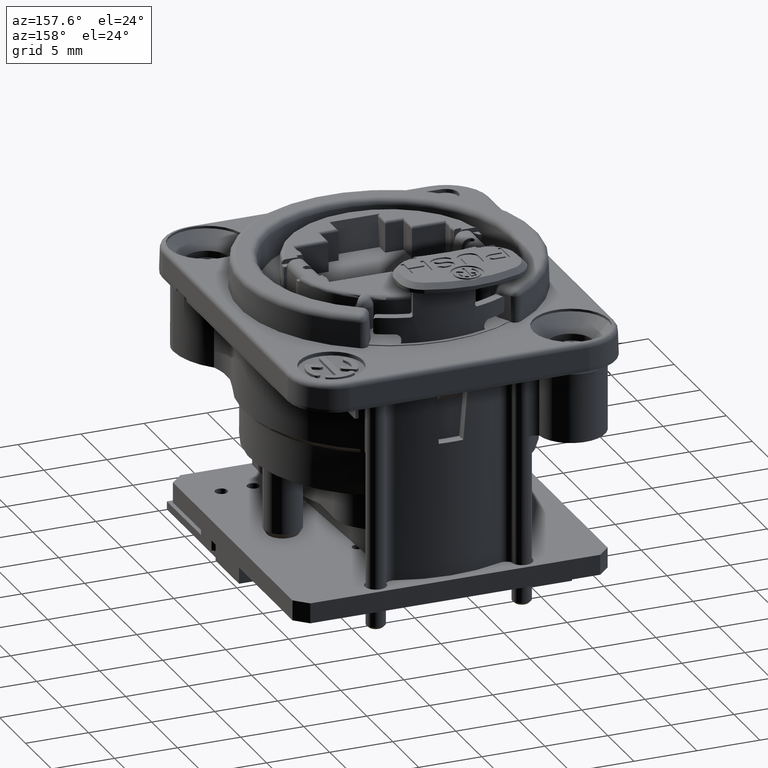
[diagram: clean part render]
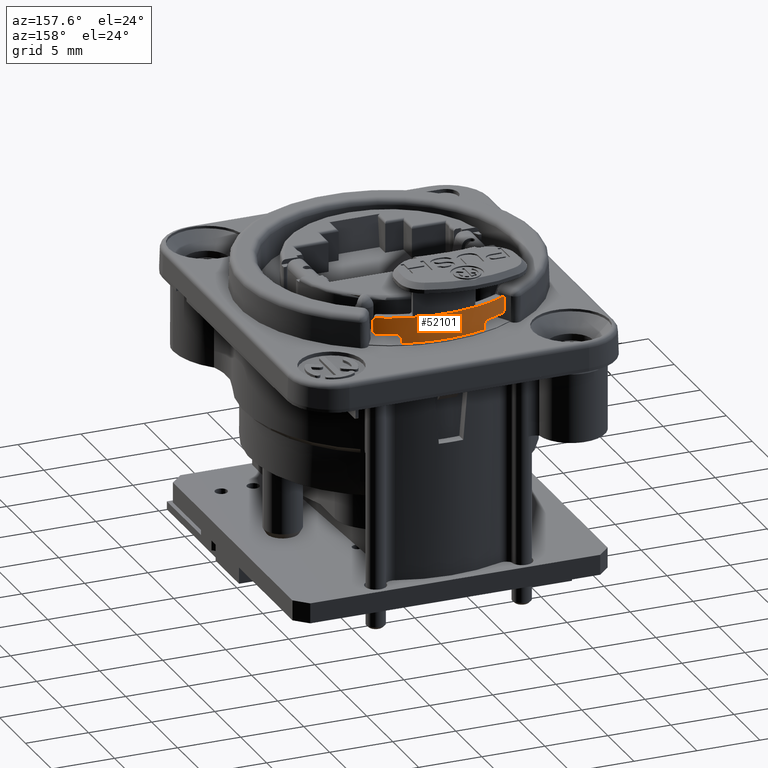
[diagram: same view with one face highlighted and labeled with its STEP entity id]
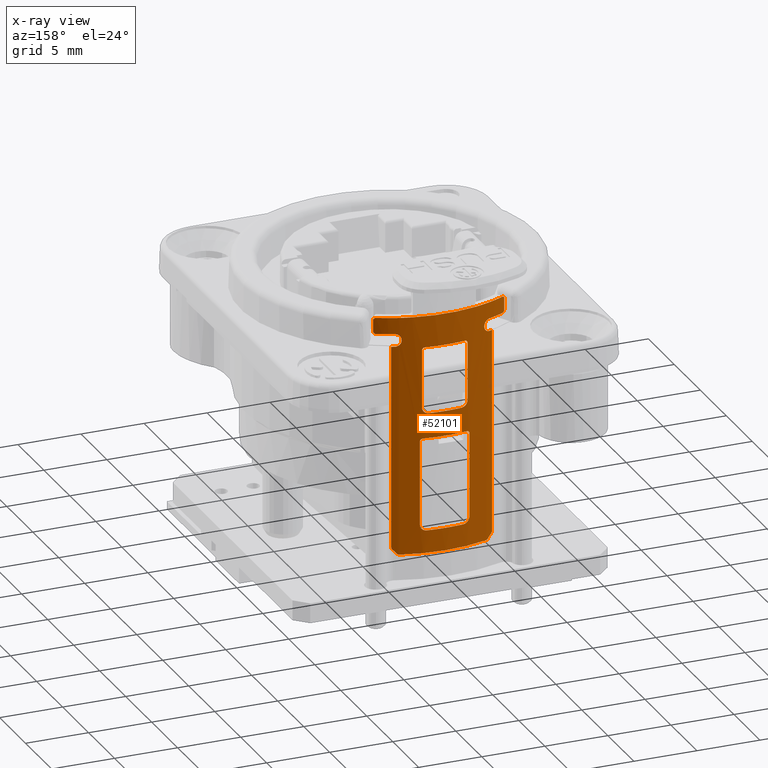
[diagram: x-ray of the same camera — body ghosted, the highlighted face saturated]
A machine part, auxiliary view. The second image highlights one B-rep face of the part: STEP entity #52101.
The next image is the same camera in x-ray: the body ghosted, the highlighted face saturated — about 0% of this face is hidden behind the body in this view.
In plain terms, the highlighted cylindrical surface (partial cylindrical patch) has radius 10.9 mm, axis along (0, 0, 1).
Its self-contained STEP definition (entity closure, byte-faithful):
#44777=DIRECTION('',(9.599317159302E-13,-8.346826896123E-13,1.E0));
#44778=VECTOR('',#44777,6.667594820286E0);
#44779=CARTESIAN_POINT('',(1.961633253372E0,1.072203315511E1,
-1.712519482029E1));
#44780=LINE('',#44779,#44778);
#44784=CARTESIAN_POINT('',(1.757109384828E0,1.075744238236E1,-1.025E1));
#44798=CARTESIAN_POINT('',(1.961633253379E0,1.072203315511E1,-1.04576E1));
#44800=CARTESIAN_POINT('',(1.961633253379E0,1.072203315511E1,-1.04576E1));
#44801=CARTESIAN_POINT('',(1.961633253379E0,1.072203315511E1,
-1.043535411662E1));
#44802=CARTESIAN_POINT('',(1.955155878715E0,1.072322264983E1,
-1.039317997435E1));
#44803=CARTESIAN_POINT('',(1.924713419247E0,1.072874372115E1,
-1.033266300941E1));
#44804=CARTESIAN_POINT('',(1.880255283652E0,1.073664797698E1,
-1.028751079353E1));
#44805=CARTESIAN_POINT('',(1.820630401653E0,1.074693552532E1,
-1.025658127235E1));
#44806=CARTESIAN_POINT('',(1.779050358237E0,1.075385856671E1,-1.025E1));
#44807=CARTESIAN_POINT('',(1.757109384828E0,1.075744238236E1,-1.025E1));
#44814=CARTESIAN_POINT('',(0.E0,0.E0,-1.025E1));
#44815=DIRECTION('',(0.E0,0.E0,1.E0));
#44816=DIRECTION('',(1.612026958558E-1,9.869213194824E-1,0.E0));
#44817=AXIS2_PLACEMENT_3D('',#44814,#44815,#44816);
#44819=CARTESIAN_POINT('',(-1.757109384828E0,1.075744238236E1,-1.025E1));
#44824=CARTESIAN_POINT('',(-1.757109384828E0,1.075744238236E1,-1.025E1));
#44825=CARTESIAN_POINT('',(-1.779050358237E0,1.075385856671E1,-1.025E1));
#44826=CARTESIAN_POINT('',(-1.820630401653E0,1.074693552532E1,
-1.025658127235E1));
#44827=CARTESIAN_POINT('',(-1.880255283652E0,1.073664797698E1,
-1.028751079353E1));
#44828=CARTESIAN_POINT('',(-1.924713419247E0,1.072874372115E1,
-1.033266300941E1));
#44829=CARTESIAN_POINT('',(-1.955155878715E0,1.072322264983E1,
-1.039317997435E1));
#44830=CARTESIAN_POINT('',(-1.961633253379E0,1.072203315511E1,
-1.043535411662E1));
#44831=CARTESIAN_POINT('',(-1.961633253379E0,1.072203315511E1,-1.04576E1));
#44833=CARTESIAN_POINT('',(-1.961633253379E0,1.072203315511E1,-1.04576E1));
#44847=DIRECTION('',(0.E0,0.E0,1.E0));
#44848=VECTOR('',#44847,8.848E-1);
#44849=CARTESIAN_POINT('',(5.201030486830E0,9.579106528015E0,-1.5424E0));
#44850=LINE('',#44849,#44848);
#44851=CARTESIAN_POINT('',(0.E0,0.E0,-4.5E-1));
#44852=DIRECTION('',(0.E0,0.E0,1.E0));
#44853=DIRECTION('',(2.451565970441E-1,9.694834928588E-1,0.E0));
#44854=AXIS2_PLACEMENT_3D('',#44851,#44852,#44853);
#44856=CARTESIAN_POINT('',(0.E0,0.E0,-4.5E-1));
#44857=DIRECTION('',(0.E0,0.E0,1.E0));
#44858=DIRECTION('',(2.266469292554E-1,9.739769861034E-1,0.E0));
#44859=AXIS2_PLACEMENT_3D('',#44856,#44857,#44858);
#44861=CARTESIAN_POINT('',(0.E0,0.E0,-4.5E-1));
#44862=DIRECTION('',(0.E0,0.E0,1.E0));
#44863=DIRECTION('',(-2.266513074369E-1,9.739759672791E-1,0.E0));
#44864=AXIS2_PLACEMENT_3D('',#44861,#44862,#44863);
#44866=DIRECTION('',(0.E0,0.E0,-1.E0));
#44867=VECTOR('',#44866,1.611400926445E1);
#44868=CARTESIAN_POINT('',(-4.000172927388E0,1.013945839535E1,-2.75E0));
#44869=LINE('',#44868,#44867);
#44892=CARTESIAN_POINT('',(1.449029124397E0,1.080323830249E1,
-1.764463572615E1));
#44894=CARTESIAN_POINT('',(1.449029124397E0,1.080323830249E1,
-1.764463572615E1));
#44895=CARTESIAN_POINT('',(1.494893242116E0,1.079708659705E1,
-1.764463572615E1));
#44896=CARTESIAN_POINT('',(1.583081768365E0,1.078470000580E1,
-1.763271748011E1));
#44897=CARTESIAN_POINT('',(1.708777571555E0,1.076544488297E1,
-1.758032084518E1));
#44898=CARTESIAN_POINT('',(1.815917191049E0,1.074781593762E1,
-1.749687263911E1));
#44899=CARTESIAN_POINT('',(1.898222830045E0,1.073351195766E1,
-1.738823895333E1));
#44900=CARTESIAN_POINT('',(1.949874298576E0,1.072419436937E1,
-1.726090910517E1));
#44901=CARTESIAN_POINT('',(1.961633253201E0,1.072203315515E1,
-1.717161563702E1));
#44902=CARTESIAN_POINT('',(1.961633253372E0,1.072203315511E1,
-1.712519482029E1));
#44904=CARTESIAN_POINT('',(1.961633253372E0,1.072203315511E1,
-1.712519482029E1));
#45023=DIRECTION('',(0.E0,0.E0,1.E0));
#45024=VECTOR('',#45023,6.667594842142E0);
#45025=CARTESIAN_POINT('',(-1.961633253379E0,1.072203315511E1,
-1.712519484214E1));
#45026=LINE('',#45025,#45024);
#45031=CARTESIAN_POINT('',(-1.961633253379E0,1.072203315511E1,
-1.712519484214E1));
#45038=CARTESIAN_POINT('',(-1.961633253379E0,1.072203315511E1,
-1.712519484214E1));
#45039=CARTESIAN_POINT('',(-1.961633253379E0,1.072203315511E1,
-1.717161565680E1));
#45040=CARTESIAN_POINT('',(-1.949874298836E0,1.072419436932E1,
-1.726090912291E1));
#45041=CARTESIAN_POINT('',(-1.898222833574E0,1.073351195703E1,
-1.738823896300E1));
#45042=CARTESIAN_POINT('',(-1.815917197045E0,1.074781593660E1,
-1.749687264607E1));
#45043=CARTESIAN_POINT('',(-1.708777582652E0,1.076544488116E1,
-1.758032084738E1));
#45044=CARTESIAN_POINT('',(-1.583081786586E0,1.078470000318E1,
-1.763271748128E1));
#45045=CARTESIAN_POINT('',(-1.494893255726E0,1.079708659505E1,
-1.764463572630E1));
#45046=CARTESIAN_POINT('',(-1.449029139813E0,1.080323830033E1,
-1.764463572630E1));
#45072=CARTESIAN_POINT('',(0.E0,0.E0,-1.764463572632E1));
#45073=DIRECTION('',(0.E0,0.E0,1.E0));
#45074=DIRECTION('',(8.560938803546E-2,9.963287774024E-1,0.E0));
#45075=AXIS2_PLACEMENT_3D('',#45072,#45073,#45074);
#45077=CARTESIAN_POINT('',(0.E0,0.E0,-1.764463572631E1));
#45078=DIRECTION('',(0.E0,0.E0,1.E0));
#45079=DIRECTION('',(1.329384498522E-1,9.911242952077E-1,0.E0));
#45080=AXIS2_PLACEMENT_3D('',#45077,#45078,#45079);
#45082=CARTESIAN_POINT('',(0.E0,0.E0,-1.764463572631E1));
#45083=DIRECTION('',(0.E0,0.E0,1.E0));
#45084=DIRECTION('',(-8.560928481689E-2,9.963287862714E-1,0.E0));
#45085=AXIS2_PLACEMENT_3D('',#45082,#45083,#45084);
#45324=CARTESIAN_POINT('',(0.E0,0.E0,-8.26E0));
#45325=DIRECTION('',(0.E0,0.E0,1.E0));
#45326=DIRECTION('',(-7.136687902735E-2,9.974501333791E-1,0.E0));
#45327=AXIS2_PLACEMENT_3D('',#45324,#45325,#45326);
#45329=CARTESIAN_POINT('',(0.E0,0.E0,-8.26E0));
#45330=DIRECTION('',(0.E0,0.E0,1.E0));
#45331=DIRECTION('',(7.136687902734E-2,9.974501333791E-1,0.E0));
#45332=AXIS2_PLACEMENT_3D('',#45329,#45330,#45331);
#45334=CARTESIAN_POINT('',(0.E0,0.E0,-8.26E0));
#45335=DIRECTION('',(0.E0,0.E0,1.E0));
#45336=DIRECTION('',(1.187629808289E-1,9.929226326279E-1,0.E0));
#45337=AXIS2_PLACEMENT_3D('',#45334,#45335,#45336);
#45366=CARTESIAN_POINT('',(-1.808249726453E0,1.074896427228E1,
-7.740524821560E0));
#45373=CARTESIAN_POINT('',(-1.808249726453E0,1.074896427228E1,
-7.740524821560E0));
#45374=CARTESIAN_POINT('',(-1.808249726453E0,1.074896427228E1,
-7.786949492682E0));
#45375=CARTESIAN_POINT('',(-1.796460214448E0,1.075095738807E1,
-7.876249995897E0));
#45376=CARTESIAN_POINT('',(-1.744677620356E0,1.075953675972E1,
-8.003588232366E0));
#45377=CARTESIAN_POINT('',(-1.662171053128E0,1.077266364995E1,
-8.112228557210E0));
#45378=CARTESIAN_POINT('',(-1.554784371958E0,1.078876274007E1,
-8.195681373269E0));
#45379=CARTESIAN_POINT('',(-1.428819592826E0,1.080621400630E1,
-8.248080983924E0));
#45380=CARTESIAN_POINT('',(-1.340456892459E0,1.081735693575E1,
-8.260000000005E0));
#45381=CARTESIAN_POINT('',(-1.294506733971E0,1.082285297072E1,
-8.260000000005E0));
#45411=DIRECTION('',(0.E0,0.E0,1.E0));
#45412=VECTOR('',#45411,4.582924821560E0);
#45413=CARTESIAN_POINT('',(-1.808249726453E0,1.074896427228E1,
-7.740524821560E0));
#45414=LINE('',#45413,#45412);
#45585=CARTESIAN_POINT('',(1.294516154210E0,1.082285184372E1,
-8.260000005986E0));
#45587=CARTESIAN_POINT('',(1.294516154210E0,1.082285184372E1,
-8.260000005986E0));
#45588=CARTESIAN_POINT('',(1.340467154282E0,1.081735566752E1,
-8.260000005986E0));
#45589=CARTESIAN_POINT('',(1.428831471148E0,1.080621244542E1,
-8.248080782321E0));
#45590=CARTESIAN_POINT('',(1.554798493449E0,1.078876071313E1,
-8.195680238897E0));
#45591=CARTESIAN_POINT('',(1.662187183565E0,1.077266116642E1,
-8.112225850001E0));
#45592=CARTESIAN_POINT('',(1.744695198806E0,1.075953391189E1,
-8.003583601773E0));
#45593=CARTESIAN_POINT('',(1.796478773267E0,1.075095428758E1,
-7.876242953037E0));
#45594=CARTESIAN_POINT('',(1.808268487067E0,1.074896111625E1,
-7.786940814801E0));
#45595=CARTESIAN_POINT('',(1.808268487067E0,1.074896111625E1,
-7.740515294551E0));
#45597=CARTESIAN_POINT('',(1.808268487067E0,1.074896111625E1,
-7.740515294551E0));
#45604=DIRECTION('',(-2.945413380774E-11,4.954743437011E-12,1.E0));
#45605=VECTOR('',#45604,4.582915294551E0);
#45606=CARTESIAN_POINT('',(1.808268487067E0,1.074896111625E1,
-7.740515294551E0));
#45607=LINE('',#45606,#45605);
#45645=CARTESIAN_POINT('',(1.603259665224E0,1.078144510007E1,-2.95E0));
#45659=CARTESIAN_POINT('',(1.808268486932E0,1.074896111627E1,-3.1576E0));
#45661=CARTESIAN_POINT('',(1.808268486932E0,1.074896111627E1,-3.1576E0));
#45662=CARTESIAN_POINT('',(1.808268486932E0,1.074896111627E1,
-3.135354116623E0));
#45663=CARTESIAN_POINT('',(1.801774781223E0,1.075005796011E1,
-3.093179974350E0));
#45664=CARTESIAN_POINT('',(1.771256559300E0,1.075514359650E1,
-3.032663009412E0));
#45665=CARTESIAN_POINT('',(1.726690047484E0,1.076241195983E1,
-2.987510793528E0));
#45666=CARTESIAN_POINT('',(1.666924291410E0,1.077184671501E1,
-2.956581272349E0));
#45667=CARTESIAN_POINT('',(1.625249594787E0,1.077817507766E1,-2.95E0));
#45668=CARTESIAN_POINT('',(1.603259665224E0,1.078144510007E1,-2.95E0));
#45675=CARTESIAN_POINT('',(0.E0,0.E0,-2.95E0));
#45676=DIRECTION('',(0.E0,0.E0,1.E0));
#45677=DIRECTION('',(1.470880426811E-1,9.891234036763E-1,0.E0));
#45678=AXIS2_PLACEMENT_3D('',#45675,#45676,#45677);
#45680=CARTESIAN_POINT('',(-1.603240848050E0,1.078144789827E1,-2.95E0));
#45685=CARTESIAN_POINT('',(-1.603240848050E0,1.078144789827E1,-2.95E0));
#45686=CARTESIAN_POINT('',(-1.625230783320E0,1.077817791424E1,-2.95E0));
#45687=CARTESIAN_POINT('',(-1.666905490989E0,1.077184962432E1,
-2.956581272349E0));
#45688=CARTESIAN_POINT('',(-1.726671263529E0,1.076241497346E1,
-2.987510793528E0));
#45689=CARTESIAN_POINT('',(-1.771237788030E0,1.075514668791E1,
-3.032663009412E0));
#45690=CARTESIAN_POINT('',(-1.801756018830E0,1.075006110478E1,
-3.093179974350E0));
#45691=CARTESIAN_POINT('',(-1.808249726453E0,1.074896427228E1,
-3.135354116623E0));
#45692=CARTESIAN_POINT('',(-1.808249726453E0,1.074896427228E1,-3.1576E0));
#45694=CARTESIAN_POINT('',(-1.808249726453E0,1.074896427228E1,-3.1576E0));
#45717=CARTESIAN_POINT('',(0.E0,0.E0,-2.75E0));
#45718=DIRECTION('',(0.E0,0.E0,-1.E0));
#45719=DIRECTION('',(-3.669883419622E-1,9.302255408576E-1,0.E0));
#45720=AXIS2_PLACEMENT_3D('',#45717,#45718,#45719);
#45722=CARTESIAN_POINT('',(0.E0,0.E0,-2.75E0));
#45723=DIRECTION('',(0.E0,0.E0,-1.E0));
#45724=DIRECTION('',(3.441377443113E-1,9.389191727408E-1,0.E0));
#45725=AXIS2_PLACEMENT_3D('',#45722,#45723,#45724);
#45759=CARTESIAN_POINT('',(-3.751101412993E0,1.023421898288E1,-2.75E0));
#45760=CARTESIAN_POINT('',(-3.706293553371E0,1.025064220245E1,-2.75E0));
#45761=CARTESIAN_POINT('',(-3.616542525587E0,1.028284999959E1,
-2.736196122099E0));
#45762=CARTESIAN_POINT('',(-3.493003251731E0,1.032539846351E1,
-2.676726858455E0));
#45763=CARTESIAN_POINT('',(-3.388866338631E0,1.035994872259E1,
-2.581560827750E0));
#45764=CARTESIAN_POINT('',(-3.315232344233E0,1.038365767008E1,
-2.461537666898E0));
#45765=CARTESIAN_POINT('',(-3.275971002619E0,1.039606050945E1,
-2.321334267204E0));
#45766=CARTESIAN_POINT('',(-3.275971002619E0,1.039606050945E1,
-2.178665732796E0));
#45767=CARTESIAN_POINT('',(-3.315232344233E0,1.038365767008E1,
-2.038462333102E0));
#45768=CARTESIAN_POINT('',(-3.388866338631E0,1.035994872259E1,
-1.918439172250E0));
#45769=CARTESIAN_POINT('',(-3.493003251731E0,1.032539846351E1,
-1.823273141545E0));
#45770=CARTESIAN_POINT('',(-3.616542525587E0,1.028284999959E1,
-1.763803877901E0));
#45771=CARTESIAN_POINT('',(-3.706293553371E0,1.025064220245E1,-1.75E0));
#45772=CARTESIAN_POINT('',(-3.751101412993E0,1.023421898288E1,-1.75E0));
#45774=CARTESIAN_POINT('',(0.E0,0.E0,-1.75E0));
#45775=DIRECTION('',(0.E0,0.E0,1.E0));
#45776=DIRECTION('',(-3.441377443113E-1,9.389191727408E-1,0.E0));
#45777=AXIS2_PLACEMENT_3D('',#45774,#45775,#45776);
#45789=CARTESIAN_POINT('',(0.E0,0.E0,-1.75E0));
#45790=DIRECTION('',(0.E0,0.E0,1.E0));
#45791=DIRECTION('',(4.603378714035E-1,8.877437942062E-1,0.E0));
#45792=AXIS2_PLACEMENT_3D('',#45789,#45790,#45791);
#45794=CARTESIAN_POINT('',(-5.017682798298E0,9.676407356848E0,-1.75E0));
#45799=CARTESIAN_POINT('',(-5.017682798298E0,9.676407356848E0,-1.75E0));
#45800=CARTESIAN_POINT('',(-5.037418883231E0,9.666173247202E0,-1.75E0));
#45801=CARTESIAN_POINT('',(-5.074779578914E0,9.646653848372E0,
-1.743418727651E0));
#45802=CARTESIAN_POINT('',(-5.128241954111E0,9.618321276261E0,
-1.712489206472E0));
#45803=CARTESIAN_POINT('',(-5.168032454442E0,9.596973696436E0,
-1.667336990588E0));
#45804=CARTESIAN_POINT('',(-5.195244955554E0,9.582252781037E0,
-1.606820025650E0));
#45805=CARTESIAN_POINT('',(-5.201030486830E0,9.579106528015E0,
-1.564645883377E0));
#45806=CARTESIAN_POINT('',(-5.201030486830E0,9.579106528015E0,-1.5424E0));
#45822=DIRECTION('',(0.E0,0.E0,1.E0));
#45823=VECTOR('',#45822,8.848E-1);
#45824=CARTESIAN_POINT('',(-5.201030486830E0,9.579106528015E0,-1.5424E0));
#45825=LINE('',#45824,#45823);
#45826=CARTESIAN_POINT('',(-5.017682798298E0,9.676407356848E0,-4.5E-1));
#45840=CARTESIAN_POINT('',(-5.201030486830E0,9.579106528015E0,-6.576E-1));
#45845=CARTESIAN_POINT('',(-5.201030486830E0,9.579106528015E0,-6.576E-1));
#45846=CARTESIAN_POINT('',(-5.201030486830E0,9.579106528015E0,
-6.353541166230E-1));
#45847=CARTESIAN_POINT('',(-5.195244955554E0,9.582252781037E0,
-5.931799743503E-1));
#45848=CARTESIAN_POINT('',(-5.168032454442E0,9.596973696436E0,
-5.326630094118E-1));
#45849=CARTESIAN_POINT('',(-5.128241954111E0,9.618321276261E0,
-4.875107935276E-1));
#45850=CARTESIAN_POINT('',(-5.074779578914E0,9.646653848372E0,
-4.565812723492E-1));
#45851=CARTESIAN_POINT('',(-5.037418883231E0,9.666173247202E0,-4.5E-1));
#45852=CARTESIAN_POINT('',(-5.017682798298E0,9.676407356848E0,-4.5E-1));
#45859=CARTESIAN_POINT('',(0.E0,0.E0,-4.5E-1));
#45860=DIRECTION('',(0.E0,0.E0,1.E0));
#45861=DIRECTION('',(4.603378714035E-1,8.877437942062E-1,0.E0));
#45862=AXIS2_PLACEMENT_3D('',#45859,#45860,#45861);
#45864=CARTESIAN_POINT('',(0.E0,0.E0,-4.5E-1));
#45865=DIRECTION('',(0.E0,0.E0,1.E0));
#45866=DIRECTION('',(-2.451565970441E-1,9.694834928588E-1,0.E0));
#45867=AXIS2_PLACEMENT_3D('',#45864,#45865,#45866);
#45877=CARTESIAN_POINT('',(5.017682798298E0,9.676407356848E0,-4.5E-1));
#45879=CARTESIAN_POINT('',(5.017682798298E0,9.676407356848E0,-4.5E-1));
#45880=CARTESIAN_POINT('',(5.037418883231E0,9.666173247202E0,-4.5E-1));
#45881=CARTESIAN_POINT('',(5.074779578914E0,9.646653848372E0,
-4.565812723492E-1));
#45882=CARTESIAN_POINT('',(5.128241954111E0,9.618321276261E0,
-4.875107935276E-1));
#45883=CARTESIAN_POINT('',(5.168032454442E0,9.596973696436E0,
-5.326630094118E-1));
#45884=CARTESIAN_POINT('',(5.195244955554E0,9.582252781037E0,
-5.931799743503E-1));
#45885=CARTESIAN_POINT('',(5.201030486830E0,9.579106528015E0,
-6.353541166230E-1));
#45886=CARTESIAN_POINT('',(5.201030486830E0,9.579106528015E0,-6.576E-1));
#45909=CARTESIAN_POINT('',(5.017682798298E0,9.676407356848E0,-1.75E0));
#45923=CARTESIAN_POINT('',(5.201030486830E0,9.579106528015E0,-1.5424E0));
#45925=CARTESIAN_POINT('',(5.201030486830E0,9.579106528015E0,-1.5424E0));
#45926=CARTESIAN_POINT('',(5.201030486830E0,9.579106528015E0,
-1.564645883377E0));
#45927=CARTESIAN_POINT('',(5.195244955554E0,9.582252781037E0,
-1.606820025650E0));
#45928=CARTESIAN_POINT('',(5.168032454442E0,9.596973696436E0,
-1.667336990588E0));
#45929=CARTESIAN_POINT('',(5.128241954111E0,9.618321276261E0,
-1.712489206472E0));
#45930=CARTESIAN_POINT('',(5.074779578914E0,9.646653848372E0,
-1.743418727651E0));
#45931=CARTESIAN_POINT('',(5.037418883231E0,9.666173247202E0,-1.75E0));
#45932=CARTESIAN_POINT('',(5.017682798298E0,9.676407356848E0,-1.75E0));
#45937=CARTESIAN_POINT('',(2.672222591453E0,1.056736526362E1,-4.5E-1));
#45969=CARTESIAN_POINT('',(-2.672206744296E0,1.056736927159E1,-4.5E-1));
#48149=CARTESIAN_POINT('',(3.751101412993E0,1.023421898288E1,-1.75E0));
#48150=CARTESIAN_POINT('',(3.706293553371E0,1.025064220245E1,-1.75E0));
#48151=CARTESIAN_POINT('',(3.616542525587E0,1.028284999959E1,
-1.763803877901E0));
#48152=CARTESIAN_POINT('',(3.493003251731E0,1.032539846351E1,
-1.823273141545E0));
#48153=CARTESIAN_POINT('',(3.388866338631E0,1.035994872259E1,
-1.918439172250E0));
#48154=CARTESIAN_POINT('',(3.315232344233E0,1.038365767008E1,
-2.038462333102E0));
#48155=CARTESIAN_POINT('',(3.275971002619E0,1.039606050945E1,
-2.178665732796E0));
#48156=CARTESIAN_POINT('',(3.275971002619E0,1.039606050945E1,
-2.321334267204E0));
#48157=CARTESIAN_POINT('',(3.315232344233E0,1.038365767008E1,
-2.461537666898E0));
#48158=CARTESIAN_POINT('',(3.388866338631E0,1.035994872259E1,
-2.581560827750E0));
#48159=CARTESIAN_POINT('',(3.493003251731E0,1.032539846351E1,
-2.676726858455E0));
#48160=CARTESIAN_POINT('',(3.616542525587E0,1.028284999959E1,
-2.736196122099E0));
#48161=CARTESIAN_POINT('',(3.706293553371E0,1.025064220245E1,-2.75E0));
#48162=CARTESIAN_POINT('',(3.751101412993E0,1.023421898288E1,-2.75E0));
#48190=CARTESIAN_POINT('',(-3.943549671944E0,1.016161483156E1,
-1.901080355221E1));
#48192=CARTESIAN_POINT('',(-3.943549671944E0,1.016161483156E1,
-1.901080355221E1));
#48193=CARTESIAN_POINT('',(-3.955758154357E0,1.015687692743E1,
-1.899770815447E1));
#48194=CARTESIAN_POINT('',(-3.976090005614E0,1.014893801995E1,
-1.896919022792E1));
#48195=CARTESIAN_POINT('',(-3.995771633983E0,1.014119667473E1,
-1.891813261460E1));
#48196=CARTESIAN_POINT('',(-4.000172927388E0,1.013945839535E1,
-1.888253099736E1));
#48197=CARTESIAN_POINT('',(-4.000172927388E0,1.013945839535E1,
-1.886400926445E1));
#48216=CARTESIAN_POINT('',(-3.588389504054E0,1.029239820291E1,
-1.938917858408E1));
#48217=CARTESIAN_POINT('',(-3.707556922323E0,1.025085112083E1,
-1.926307871321E1));
#48218=CARTESIAN_POINT('',(-3.825943334112E0,1.020725584853E1,
-1.913695369257E1));
#48219=CARTESIAN_POINT('',(-3.943549671944E0,1.016161483156E1,
-1.901080355221E1));
#48238=CARTESIAN_POINT('',(-3.449321042512E0,1.033983483164E1,-1.945E1));
#48239=CARTESIAN_POINT('',(-3.466906644163E0,1.033396835633E1,-1.945E1));
#48240=CARTESIAN_POINT('',(-3.500680539222E0,1.032260448704E1,
-1.944526652008E1));
#48241=CARTESIAN_POINT('',(-3.549039727127E0,1.030606960010E1,
-1.942411079158E1));
#48242=CARTESIAN_POINT('',(-3.576010527569E0,1.029671406675E1,
-1.940227769590E1));
#48243=CARTESIAN_POINT('',(-3.588389504054E0,1.029239820291E1,
-1.938917858408E1));
#48250=CARTESIAN_POINT('',(0.E0,0.E0,-1.945E1));
#48251=DIRECTION('',(0.E0,0.E0,-1.E0));
#48252=DIRECTION('',(-3.164514717901E-1,9.486087001509E-1,0.E0));
#48253=AXIS2_PLACEMENT_3D('',#48250,#48251,#48252);
#48260=CARTESIAN_POINT('',(3.588389533485E0,1.029239819265E1,
-1.938917855294E1));
#48261=CARTESIAN_POINT('',(3.576010550656E0,1.029671405874E1,
-1.940227767148E1));
#48262=CARTESIAN_POINT('',(3.549039736404E0,1.030606959694E1,
-1.942411077836E1));
#48263=CARTESIAN_POINT('',(3.500680523799E0,1.032260449231E1,
-1.944526651767E1));
#48264=CARTESIAN_POINT('',(3.466906611534E0,1.033396836729E1,-1.945E1));
#48265=CARTESIAN_POINT('',(3.449321000932E0,1.033983484552E1,-1.945E1));
#48279=CARTESIAN_POINT('',(3.588389533485E0,1.029239819265E1,
-1.938917855294E1));
#48280=CARTESIAN_POINT('',(3.707556941817E0,1.025085111365E1,
-1.926307869244E1));
#48281=CARTESIAN_POINT('',(3.825943343795E0,1.020725584477E1,
-1.913695368218E1));
#48282=CARTESIAN_POINT('',(3.943549671944E0,1.016161483156E1,
-1.901080355221E1));
#48289=CARTESIAN_POINT('',(3.943549671944E0,1.016161483156E1,
-1.901080355221E1));
#48301=CARTESIAN_POINT('',(4.000172927388E0,1.013945839535E1,
-1.886400926445E1));
#48306=CARTESIAN_POINT('',(4.000172927388E0,1.013945839535E1,
-1.886400926445E1));
#48307=CARTESIAN_POINT('',(4.000172927388E0,1.013945839535E1,
-1.888253099736E1));
#48308=CARTESIAN_POINT('',(3.995771633983E0,1.014119667473E1,
-1.891813261460E1));
#48309=CARTESIAN_POINT('',(3.976090005614E0,1.014893801995E1,
-1.896919022792E1));
#48310=CARTESIAN_POINT('',(3.955758154357E0,1.015687692743E1,
-1.899770815447E1));
#48311=CARTESIAN_POINT('',(3.943549671944E0,1.016161483156E1,
-1.901080355221E1));
#48313=DIRECTION('',(0.E0,0.E0,-1.E0));
#48314=VECTOR('',#48313,1.611400926445E1);
#48315=CARTESIAN_POINT('',(4.000172927388E0,1.013945839535E1,-2.75E0));
#48316=LINE('',#48315,#48314);
#50116=CARTESIAN_POINT('',(4.000172927388E0,1.013945839535E1,-2.75E0));
#50118=VERTEX_POINT('',#50116);
#50121=CARTESIAN_POINT('',(-4.000172927388E0,1.013945839535E1,-2.75E0));
#50123=VERTEX_POINT('',#50121);
#50158=VERTEX_POINT('',#45031);
#50162=VERTEX_POINT('',#45046);
#50163=CARTESIAN_POINT('',(-9.331412045041E-1,1.085998377036E1,
-1.764463572631E1));
#50164=VERTEX_POINT('',#50163);
#50174=VERTEX_POINT('',#44904);
#50175=CARTESIAN_POINT('',(9.331423295865E-1,1.085998367369E1,
-1.764463572632E1));
#50176=VERTEX_POINT('',#50175);
#50179=VERTEX_POINT('',#44892);
#50190=VERTEX_POINT('',#44819);
#50192=VERTEX_POINT('',#44833);
#50195=VERTEX_POINT('',#44784);
#50197=VERTEX_POINT('',#44798);
#50198=VERTEX_POINT('',#45680);
#50200=VERTEX_POINT('',#45694);
#50203=VERTEX_POINT('',#45645);
#50205=VERTEX_POINT('',#45659);
#50207=VERTEX_POINT('',#45937);
#50212=CARTESIAN_POINT('',(2.470451528884E0,1.061634914853E1,-4.5E-1));
#50213=VERTEX_POINT('',#50212);
#50215=VERTEX_POINT('',#45969);
#50218=CARTESIAN_POINT('',(-2.470499251062E0,1.061633804334E1,-4.5E-1));
#50219=VERTEX_POINT('',#50218);
#50223=VERTEX_POINT('',#45909);
#50225=VERTEX_POINT('',#45923);
#50227=VERTEX_POINT('',#45877);
#50228=VERTEX_POINT('',#45886);
#50230=VERTEX_POINT('',#45826);
#50233=VERTEX_POINT('',#45840);
#50234=VERTEX_POINT('',#45794);
#50236=VERTEX_POINT('',#45806);
#50239=VERTEX_POINT('',#48190);
#50240=VERTEX_POINT('',#48197);
#50242=VERTEX_POINT('',#48289);
#50245=VERTEX_POINT('',#48301);
#50247=VERTEX_POINT('',#48279);
#50248=VERTEX_POINT('',#48216);
#50254=CARTESIAN_POINT('',(-3.449321042512E0,1.033983483164E1,-1.945E1));
#50255=CARTESIAN_POINT('',(3.449321000932E0,1.033983484552E1,-1.945E1));
#50256=VERTEX_POINT('',#50254);
#50257=VERTEX_POINT('',#50255);
#50272=VERTEX_POINT('',#45597);
#50274=VERTEX_POINT('',#45585);
#50276=CARTESIAN_POINT('',(7.778989813980E-1,1.087220645383E1,-8.26E0));
#50277=VERTEX_POINT('',#50276);
#50282=VERTEX_POINT('',#45366);
#50286=CARTESIAN_POINT('',(-7.778989813981E-1,1.087220645383E1,-8.26E0));
#50287=VERTEX_POINT('',#50286);
#50290=VERTEX_POINT('',#45381);
#50309=CARTESIAN_POINT('',(-3.751101412993E0,1.023421898288E1,-1.75E0));
#50311=VERTEX_POINT('',#50309);
#50313=CARTESIAN_POINT('',(-3.751101412993E0,1.023421898288E1,-2.75E0));
#50315=VERTEX_POINT('',#50313);
#50316=CARTESIAN_POINT('',(3.751101412993E0,1.023421898288E1,-1.75E0));
#50318=VERTEX_POINT('',#50316);
#50320=CARTESIAN_POINT('',(3.751101412993E0,1.023421898288E1,-2.75E0));
#50322=VERTEX_POINT('',#50320);
#52002=CARTESIAN_POINT('',(0.E0,0.E0,-1.75E0));
#52003=DIRECTION('',(0.E0,0.E0,1.E0));
#52004=DIRECTION('',(1.E0,0.E0,0.E0));
#52005=AXIS2_PLACEMENT_3D('',#52002,#52003,#52004);
#52006=CYLINDRICAL_SURFACE('',#52005,1.09E1);
#52008=ORIENTED_EDGE('',*,*,#52007,.F.);
#52010=ORIENTED_EDGE('',*,*,#52009,.F.);
#52012=ORIENTED_EDGE('',*,*,#52011,.F.);
#52014=ORIENTED_EDGE('',*,*,#52013,.F.);
#52016=ORIENTED_EDGE('',*,*,#52015,.T.);
#52018=ORIENTED_EDGE('',*,*,#52017,.F.);
#52020=ORIENTED_EDGE('',*,*,#52019,.T.);
#52022=ORIENTED_EDGE('',*,*,#52021,.T.);
#52024=ORIENTED_EDGE('',*,*,#52023,.T.);
#52026=ORIENTED_EDGE('',*,*,#52025,.T.);
#52028=ORIENTED_EDGE('',*,*,#52027,.T.);
#52030=ORIENTED_EDGE('',*,*,#52029,.F.);
#52032=ORIENTED_EDGE('',*,*,#52031,.F.);
#52034=ORIENTED_EDGE('',*,*,#52033,.F.);
#52036=ORIENTED_EDGE('',*,*,#52035,.F.);
#52038=ORIENTED_EDGE('',*,*,#52037,.F.);
#52040=ORIENTED_EDGE('',*,*,#52039,.F.);
#52042=ORIENTED_EDGE('',*,*,#52041,.T.);
#52044=ORIENTED_EDGE('',*,*,#52043,.F.);
#52046=ORIENTED_EDGE('',*,*,#52045,.F.);
#52048=ORIENTED_EDGE('',*,*,#52047,.F.);
#52050=ORIENTED_EDGE('',*,*,#52049,.T.);
#52052=ORIENTED_EDGE('',*,*,#52051,.F.);
#52054=ORIENTED_EDGE('',*,*,#52053,.T.);
#52056=ORIENTED_EDGE('',*,*,#52055,.F.);
#52058=ORIENTED_EDGE('',*,*,#52057,.F.);
#52059=EDGE_LOOP('',(#52008,#52010,#52012,#52014,#52016,#52018,#52020,#52022,
#52024,#52026,#52028,#52030,#52032,#52034,#52036,#52038,#52040,#52042,#52044,
#52046,#52048,#52050,#52052,#52054,#52056,#52058));
#52060=FACE_OUTER_BOUND('',#52059,.F.);
#52062=ORIENTED_EDGE('',*,*,#52061,.T.);
#52064=ORIENTED_EDGE('',*,*,#52063,.T.);
#52066=ORIENTED_EDGE('',*,*,#52065,.F.);
#52068=ORIENTED_EDGE('',*,*,#52067,.T.);
#52070=ORIENTED_EDGE('',*,*,#52069,.F.);
#52072=ORIENTED_EDGE('',*,*,#52071,.F.);
#52074=ORIENTED_EDGE('',*,*,#52073,.F.);
#52076=ORIENTED_EDGE('',*,*,#52075,.F.);
#52078=ORIENTED_EDGE('',*,*,#52077,.F.);
#52080=ORIENTED_EDGE('',*,*,#52079,.T.);
#52081=EDGE_LOOP('',(#52062,#52064,#52066,#52068,#52070,#52072,#52074,#52076,
#52078,#52080));
#52082=FACE_BOUND('',#52081,.F.);
#52083=ORIENTED_EDGE('',*,*,#51967,.F.);
#52084=ORIENTED_EDGE('',*,*,#51953,.F.);
#52085=ORIENTED_EDGE('',*,*,#51923,.F.);
#52087=ORIENTED_EDGE('',*,*,#52086,.F.);
#52089=ORIENTED_EDGE('',*,*,#52088,.T.);
#52091=ORIENTED_EDGE('',*,*,#52090,.T.);
#52093=ORIENTED_EDGE('',*,*,#52092,.T.);
#52095=ORIENTED_EDGE('',*,*,#52094,.F.);
#52097=ORIENTED_EDGE('',*,*,#52096,.T.);
#52098=ORIENTED_EDGE('',*,*,#51994,.F.);
#52099=EDGE_LOOP('',(#52083,#52084,#52085,#52087,#52089,#52091,#52093,#52095,
#52097,#52098));
#52100=FACE_BOUND('',#52099,.F.);
#52101=ADVANCED_FACE('',(#52060,#52082,#52100),#52006,.T.);
#44808=B_SPLINE_CURVE_WITH_KNOTS('',3,(#44800,#44801,#44802,#44803,#44804,
#44805,#44806,#44807),.UNSPECIFIED.,.F.,.F.,(4,1,1,1,1,4),(0.E0,2.E-1,4.E-1,
6.E-1,8.E-1,1.E0),.UNSPECIFIED.);
#44818=CIRCLE('',#44817,1.09E1);
#44832=B_SPLINE_CURVE_WITH_KNOTS('',3,(#44824,#44825,#44826,#44827,#44828,
#44829,#44830,#44831),.UNSPECIFIED.,.F.,.F.,(4,1,1,1,1,4),(0.E0,2.E-1,4.E-1,
6.E-1,8.E-1,1.E0),.UNSPECIFIED.);
#44855=CIRCLE('',#44854,1.09E1);
#44860=CIRCLE('',#44859,1.09E1);
#44865=CIRCLE('',#44864,1.09E1);
#44903=B_SPLINE_CURVE_WITH_KNOTS('',3,(#44894,#44895,#44896,#44897,#44898,
#44899,#44900,#44901,#44902),.UNSPECIFIED.,.F.,.F.,(4,1,1,1,1,1,4),(0.E0,
1.666666666667E-1,3.333333333333E-1,5.E-1,6.666666666667E-1,8.333333333333E-1,
1.E0),.UNSPECIFIED.);
#45047=B_SPLINE_CURVE_WITH_KNOTS('',3,(#45038,#45039,#45040,#45041,#45042,
#45043,#45044,#45045,#45046),.UNSPECIFIED.,.F.,.F.,(4,1,1,1,1,1,4),(0.E0,
1.666666666667E-1,3.333333333333E-1,5.E-1,6.666666666667E-1,8.333333333333E-1,
1.E0),.UNSPECIFIED.);
#45076=CIRCLE('',#45075,1.09E1);
#45081=CIRCLE('',#45080,1.09E1);
#45086=CIRCLE('',#45085,1.09E1);
#45328=CIRCLE('',#45327,1.09E1);
#45333=CIRCLE('',#45332,1.09E1);
#45338=CIRCLE('',#45337,1.09E1);
#45382=B_SPLINE_CURVE_WITH_KNOTS('',3,(#45373,#45374,#45375,#45376,#45377,
#45378,#45379,#45380,#45381),.UNSPECIFIED.,.F.,.F.,(4,1,1,1,1,1,4),(0.E0,
1.666666666667E-1,3.333333333333E-1,5.E-1,6.666666666667E-1,8.333333333333E-1,
1.E0),.UNSPECIFIED.);
#45596=B_SPLINE_CURVE_WITH_KNOTS('',3,(#45587,#45588,#45589,#45590,#45591,
#45592,#45593,#45594,#45595),.UNSPECIFIED.,.F.,.F.,(4,1,1,1,1,1,4),(0.E0,
1.666666666667E-1,3.333333333333E-1,5.E-1,6.666666666667E-1,8.333333333333E-1,
1.E0),.UNSPECIFIED.);
#45669=B_SPLINE_CURVE_WITH_KNOTS('',3,(#45661,#45662,#45663,#45664,#45665,
#45666,#45667,#45668),.UNSPECIFIED.,.F.,.F.,(4,1,1,1,1,4),(0.E0,2.E-1,4.E-1,
6.E-1,8.E-1,1.E0),.UNSPECIFIED.);
#45679=CIRCLE('',#45678,1.09E1);
#45693=B_SPLINE_CURVE_WITH_KNOTS('',3,(#45685,#45686,#45687,#45688,#45689,
#45690,#45691,#45692),.UNSPECIFIED.,.F.,.F.,(4,1,1,1,1,4),(0.E0,2.E-1,4.E-1,
6.E-1,8.E-1,1.E0),.UNSPECIFIED.);
#45721=CIRCLE('',#45720,1.09E1);
#45726=CIRCLE('',#45725,1.09E1);
#45773=B_SPLINE_CURVE_WITH_KNOTS('',3,(#45759,#45760,#45761,#45762,#45763,
#45764,#45765,#45766,#45767,#45768,#45769,#45770,#45771,#45772),.UNSPECIFIED.,
.F.,.F.,(4,1,1,1,1,1,1,1,1,1,1,4),(0.E0,9.090909090909E-2,1.818181818182E-1,
2.727272727273E-1,3.636363636364E-1,4.545454545455E-1,5.454545454545E-1,
6.363636363636E-1,7.272727272727E-1,8.181818181818E-1,9.090909090909E-1,1.E0),
.UNSPECIFIED.);
#45778=CIRCLE('',#45777,1.09E1);
#45793=CIRCLE('',#45792,1.09E1);
#45807=B_SPLINE_CURVE_WITH_KNOTS('',3,(#45799,#45800,#45801,#45802,#45803,
#45804,#45805,#45806),.UNSPECIFIED.,.F.,.F.,(4,1,1,1,1,4),(0.E0,2.E-1,4.E-1,
6.E-1,8.E-1,1.E0),.UNSPECIFIED.);
#45853=B_SPLINE_CURVE_WITH_KNOTS('',3,(#45845,#45846,#45847,#45848,#45849,
#45850,#45851,#45852),.UNSPECIFIED.,.F.,.F.,(4,1,1,1,1,4),(0.E0,2.E-1,4.E-1,
6.E-1,8.E-1,1.E0),.UNSPECIFIED.);
#45863=CIRCLE('',#45862,1.09E1);
#45868=CIRCLE('',#45867,1.09E1);
#45887=B_SPLINE_CURVE_WITH_KNOTS('',3,(#45879,#45880,#45881,#45882,#45883,
#45884,#45885,#45886),.UNSPECIFIED.,.F.,.F.,(4,1,1,1,1,4),(0.E0,2.E-1,4.E-1,
6.E-1,8.E-1,1.E0),.UNSPECIFIED.);
#45933=B_SPLINE_CURVE_WITH_KNOTS('',3,(#45925,#45926,#45927,#45928,#45929,
#45930,#45931,#45932),.UNSPECIFIED.,.F.,.F.,(4,1,1,1,1,4),(0.E0,2.E-1,4.E-1,
6.E-1,8.E-1,1.E0),.UNSPECIFIED.);
#48163=B_SPLINE_CURVE_WITH_KNOTS('',3,(#48149,#48150,#48151,#48152,#48153,
#48154,#48155,#48156,#48157,#48158,#48159,#48160,#48161,#48162),.UNSPECIFIED.,
.F.,.F.,(4,1,1,1,1,1,1,1,1,1,1,4),(0.E0,9.090909090909E-2,1.818181818182E-1,
2.727272727273E-1,3.636363636364E-1,4.545454545455E-1,5.454545454545E-1,
6.363636363636E-1,7.272727272727E-1,8.181818181818E-1,9.090909090909E-1,1.E0),
.UNSPECIFIED.);
#48198=B_SPLINE_CURVE_WITH_KNOTS('',3,(#48192,#48193,#48194,#48195,#48196,
#48197),.UNSPECIFIED.,.F.,.F.,(4,1,1,4),(0.E0,3.333333333333E-1,
6.666666666667E-1,1.E0),.UNSPECIFIED.);
#48220=B_SPLINE_CURVE_WITH_KNOTS('',3,(#48216,#48217,#48218,#48219),
.UNSPECIFIED.,.F.,.F.,(4,4),(0.E0,1.E0),.UNSPECIFIED.);
#48244=B_SPLINE_CURVE_WITH_KNOTS('',3,(#48238,#48239,#48240,#48241,#48242,
#48243),.UNSPECIFIED.,.F.,.F.,(4,1,1,4),(0.E0,3.333333333333E-1,
6.666666666667E-1,1.E0),.UNSPECIFIED.);
#48254=CIRCLE('',#48253,1.09E1);
#48266=B_SPLINE_CURVE_WITH_KNOTS('',3,(#48260,#48261,#48262,#48263,#48264,
#48265),.UNSPECIFIED.,.F.,.F.,(4,1,1,4),(0.E0,3.333333333333E-1,
6.666666666667E-1,1.E0),.UNSPECIFIED.);
#48283=B_SPLINE_CURVE_WITH_KNOTS('',3,(#48279,#48280,#48281,#48282),
.UNSPECIFIED.,.F.,.F.,(4,4),(0.E0,1.E0),.UNSPECIFIED.);
#48312=B_SPLINE_CURVE_WITH_KNOTS('',3,(#48306,#48307,#48308,#48309,#48310,
#48311),.UNSPECIFIED.,.F.,.F.,(4,1,1,4),(0.E0,3.333333333333E-1,
6.666666666667E-1,1.E0),.UNSPECIFIED.);
#51923=EDGE_CURVE('',#50174,#50197,#44780,.T.);
#51953=EDGE_CURVE('',#50197,#50195,#44808,.T.);
#51967=EDGE_CURVE('',#50195,#50190,#44818,.T.);
#51994=EDGE_CURVE('',#50190,#50192,#44832,.T.);
#52007=EDGE_CURVE('',#50322,#50118,#45726,.T.);
#52009=EDGE_CURVE('',#50318,#50322,#48163,.T.);
#52011=EDGE_CURVE('',#50223,#50318,#45793,.T.);
#52013=EDGE_CURVE('',#50225,#50223,#45933,.T.);
#52015=EDGE_CURVE('',#50225,#50228,#44850,.T.);
#52017=EDGE_CURVE('',#50227,#50228,#45887,.T.);
#52019=EDGE_CURVE('',#50227,#50207,#45863,.T.);
#52021=EDGE_CURVE('',#50207,#50213,#44855,.T.);
#52023=EDGE_CURVE('',#50213,#50219,#44860,.T.);
#52025=EDGE_CURVE('',#50219,#50215,#44865,.T.);
#52027=EDGE_CURVE('',#50215,#50230,#45868,.T.);
#52029=EDGE_CURVE('',#50233,#50230,#45853,.T.);
#52031=EDGE_CURVE('',#50236,#50233,#45825,.T.);
#52033=EDGE_CURVE('',#50234,#50236,#45807,.T.);
#52035=EDGE_CURVE('',#50311,#50234,#45778,.T.);
#52037=EDGE_CURVE('',#50315,#50311,#45773,.T.);
#52039=EDGE_CURVE('',#50123,#50315,#45721,.T.);
#52041=EDGE_CURVE('',#50123,#50240,#44869,.T.);
#52043=EDGE_CURVE('',#50239,#50240,#48198,.T.);
#52045=EDGE_CURVE('',#50248,#50239,#48220,.T.);
#52047=EDGE_CURVE('',#50256,#50248,#48244,.T.);
#52049=EDGE_CURVE('',#50256,#50257,#48254,.T.);
#52051=EDGE_CURVE('',#50247,#50257,#48266,.T.);
#52053=EDGE_CURVE('',#50247,#50242,#48283,.T.);
#52055=EDGE_CURVE('',#50245,#50242,#48312,.T.);
#52057=EDGE_CURVE('',#50118,#50245,#48316,.T.);
#52061=EDGE_CURVE('',#50277,#50287,#45333,.T.);
#52063=EDGE_CURVE('',#50287,#50290,#45328,.T.);
#52065=EDGE_CURVE('',#50282,#50290,#45382,.T.);
#52067=EDGE_CURVE('',#50282,#50200,#45414,.T.);
#52069=EDGE_CURVE('',#50198,#50200,#45693,.T.);
#52071=EDGE_CURVE('',#50203,#50198,#45679,.T.);
#52073=EDGE_CURVE('',#50205,#50203,#45669,.T.);
#52075=EDGE_CURVE('',#50272,#50205,#45607,.T.);
#52077=EDGE_CURVE('',#50274,#50272,#45596,.T.);
#52079=EDGE_CURVE('',#50274,#50277,#45338,.T.);
#52086=EDGE_CURVE('',#50179,#50174,#44903,.T.);
#52088=EDGE_CURVE('',#50179,#50176,#45081,.T.);
#52090=EDGE_CURVE('',#50176,#50164,#45076,.T.);
#52092=EDGE_CURVE('',#50164,#50162,#45086,.T.);
#52094=EDGE_CURVE('',#50158,#50162,#45047,.T.);
#52096=EDGE_CURVE('',#50158,#50192,#45026,.T.);